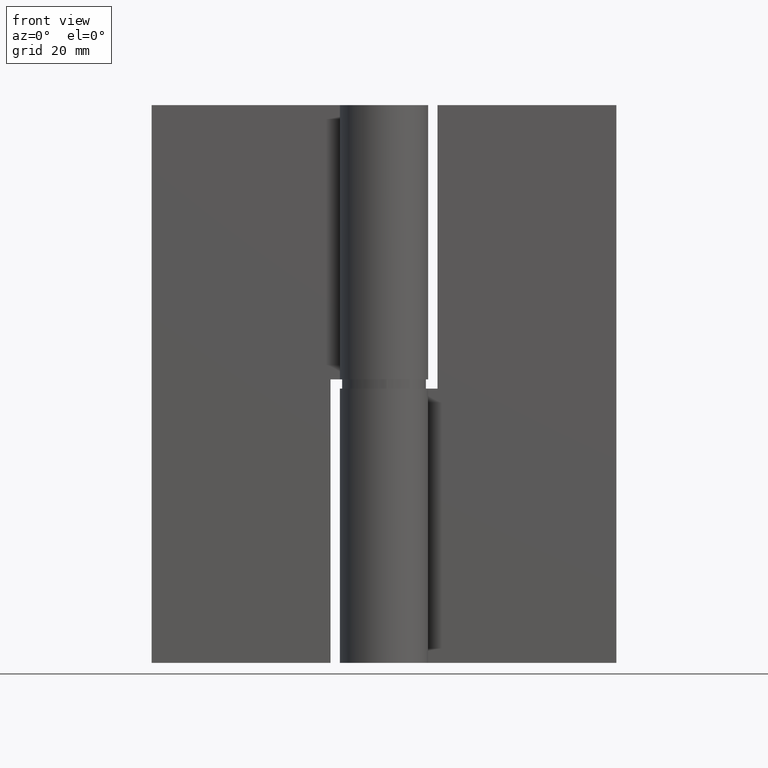
[diagram: clean part render]
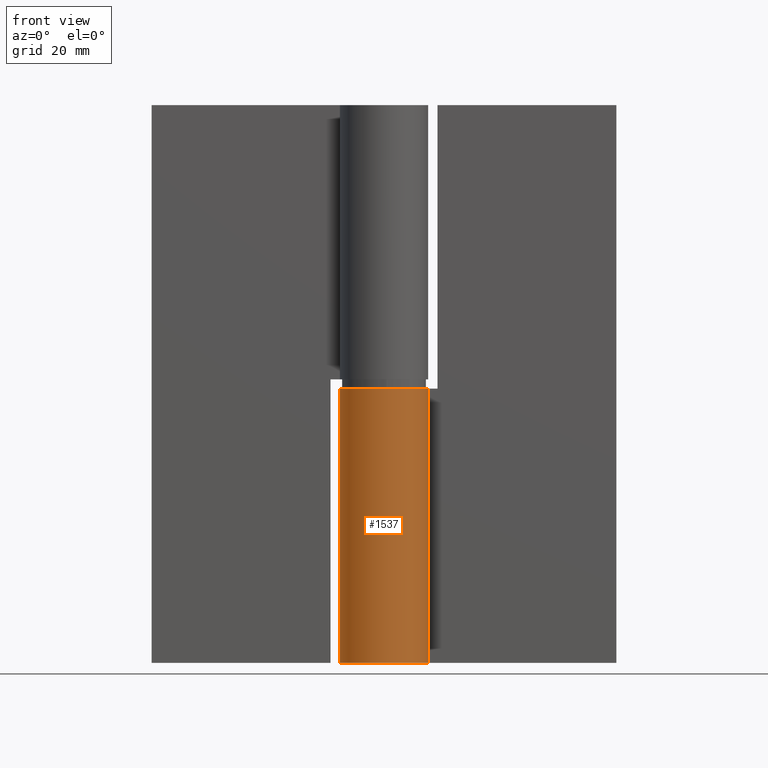
[diagram: same view with one face highlighted and labeled with its STEP entity id]
A machine part, front view. The second image highlights one B-rep face of the part: STEP entity #1537.
In plain terms, the highlighted face is a freeform B-spline surface patch.
Its self-contained STEP definition (entity closure, byte-faithful):
#1322=CARTESIAN_POINT('',(0.0,9.500000000000000,59.0));
#1323=VERTEX_POINT('',#1322);
#1329=CARTESIAN_POINT('',(8.108483212044041,4.950000000000000,59.0));
#1330=VERTEX_POINT('',#1329);
#1331=CARTESIAN_POINT('',(8.108483212044039,4.950000000000000,59.0));
#1332=CARTESIAN_POINT('',(11.930878856379517,-1.311379982198882,59.0));
#1333=CARTESIAN_POINT('',(6.839733550264772,-6.593030028854900,59.0));
#1334=CARTESIAN_POINT('',(1.748588244150026,-11.874680075510920,59.0));
#1335=CARTESIAN_POINT('',(-4.648924606831133,-8.284775193087619,59.0));
#1336=CARTESIAN_POINT('',(-11.046437457812283,-4.694870310664319,59.0));
#1337=CARTESIAN_POINT('',(-9.191174145187667,2.402564844667832,59.0));
#1338=CARTESIAN_POINT('',(-7.335910832563044,9.500000000000000,59.0));
#1339=CARTESIAN_POINT('',(0.0,9.500000000000000,59.0));
#1347=(BOUNDED_CURVE()B_SPLINE_CURVE(2,(#1331,#1332,#1333,#1334,#1335,#1336,#1337,#1338,#1339),.UNSPECIFIED.,.F.,.U.)B_SPLINE_CURVE_WITH_KNOTS((3,2,2,2,3),(0.0,0.250000000000000,0.500000000000000,0.750000000000000,1.0),.UNSPECIFIED.)CURVE()GEOMETRIC_REPRESENTATION_ITEM()RATIONAL_B_SPLINE_CURVE((1.0,0.791486437848626,1.0,0.791486437848626,1.0,0.791486437848626,1.0,0.791486437848626,1.0))REPRESENTATION_ITEM(''));
#1348=EDGE_CURVE('',#1330,#1323,#1347,.T.);
#1435=CARTESIAN_POINT('',(8.108483212044041,4.950000000000000,0.0));
#1436=VERTEX_POINT('',#1435);
#1442=CARTESIAN_POINT('',(0.0,9.500000000000000,0.0));
#1443=VERTEX_POINT('',#1442);
#1444=CARTESIAN_POINT('',(8.108483212044039,4.949999999999998,0.0));
#1445=CARTESIAN_POINT('',(11.930878856379515,-1.311379982198886,0.0));
#1446=CARTESIAN_POINT('',(6.839733550264771,-6.593030028854902,0.0));
#1447=CARTESIAN_POINT('',(1.748588244150024,-11.874680075510922,0.0));
#1448=CARTESIAN_POINT('',(-4.648924606831132,-8.284775193087620,0.0));
#1449=CARTESIAN_POINT('',(-11.046437457812292,-4.694870310664316,0.0));
#1450=CARTESIAN_POINT('',(-9.191174145187663,2.402564844667847,0.0));
#1451=CARTESIAN_POINT('',(-7.335910832563033,9.500000000000002,0.0));
#1452=CARTESIAN_POINT('',(0.0,9.500000000000000,0.0));
#1460=(BOUNDED_CURVE()B_SPLINE_CURVE(2,(#1444,#1445,#1446,#1447,#1448,#1449,#1450,#1451,#1452),.UNSPECIFIED.,.F.,.U.)B_SPLINE_CURVE_WITH_KNOTS((3,2,2,2,3),(0.0,0.250000000000000,0.500000000000000,0.750000000000000,1.0),.UNSPECIFIED.)CURVE()GEOMETRIC_REPRESENTATION_ITEM()RATIONAL_B_SPLINE_CURVE((1.0,0.791486437848626,1.0,0.791486437848626,1.0,0.791486437848626,1.0,0.791486437848626,1.0))REPRESENTATION_ITEM(''));
#1461=EDGE_CURVE('',#1436,#1443,#1460,.T.);
#1491=CARTESIAN_POINT('',(8.108483212044041,4.950000000000000,0.0));
#1492=CARTESIAN_POINT('',(8.108483212044041,4.950000000000000,59.0));
#1493=QUASI_UNIFORM_CURVE('',1,(#1491,#1492),.UNSPECIFIED.,.F.,.U.);
#1494=EDGE_CURVE('',#1436,#1330,#1493,.T.);
#1505=CARTESIAN_POINT('',(7.921915309638094,5.243401360464551,-1.475000000000001));
#1506=CARTESIAN_POINT('',(7.921915309638094,5.243401360464551,60.511875000000011));
#1507=CARTESIAN_POINT('',(14.474558910500789,-4.656563202934279,-1.475000000000001));
#1508=CARTESIAN_POINT('',(14.474558910500789,-4.656563202934279,60.511875000000011));
#1509=CARTESIAN_POINT('',(3.378682237241327,-8.878879790815386,-1.475000000000001));
#1510=CARTESIAN_POINT('',(3.378682237241327,-8.878879790815386,60.511875000000011));
#1511=CARTESIAN_POINT('',(-7.717194436018135,-13.101196378696493,-1.475000000000001));
#1512=CARTESIAN_POINT('',(-7.717194436018135,-13.101196378696493,60.511875000000011));
#1513=CARTESIAN_POINT('',(-9.403660894738863,-1.349504270745000,-1.475000000000001));
#1514=CARTESIAN_POINT('',(-9.403660894738863,-1.349504270745000,60.511875000000011));
#1515=CARTESIAN_POINT('',(-11.090127353459593,10.402187837206490,-1.475000000000001));
#1516=CARTESIAN_POINT('',(-11.090127353459593,10.402187837206490,60.511875000000011));
#1517=CARTESIAN_POINT('',(0.745361409414523,9.470714670464712,-1.475000000000001));
#1518=CARTESIAN_POINT('',(0.745361409414523,9.470714670464712,60.511875000000011));
#1526=(BOUNDED_SURFACE()B_SPLINE_SURFACE(1,2,((#1505,#1507,#1509,#1511,#1513,#1515,#1517),(#1506,#1508,#1510,#1512,#1514,#1516,#1518)),.UNSPECIFIED.,.F.,.F.,.U.)B_SPLINE_SURFACE_WITH_KNOTS((2,2),(3,2,2,3),(0.0,61.986875000000012),(0.0,18.260944577172101,36.521889154344187,54.782833731516291),.UNSPECIFIED.)GEOMETRIC_REPRESENTATION_ITEM()RATIONAL_B_SPLINE_SURFACE(((1.0,0.624788514543960,1.0,0.624788514543960,1.0,0.624788514543960,1.0),(1.0,0.624788514543960,1.0,0.624788514543960,1.0,0.624788514543960,1.0)))REPRESENTATION_ITEM('')SURFACE());
#1527=ORIENTED_EDGE('',*,*,#1494,.T.);
#1528=ORIENTED_EDGE('',*,*,#1348,.T.);
#1529=CARTESIAN_POINT('',(0.0,9.500000000000000,0.0));
#1530=CARTESIAN_POINT('',(0.0,9.500000000000000,59.0));
#1531=QUASI_UNIFORM_CURVE('',1,(#1529,#1530),.UNSPECIFIED.,.F.,.U.);
#1532=EDGE_CURVE('',#1443,#1323,#1531,.T.);
#1533=ORIENTED_EDGE('',*,*,#1532,.F.);
#1534=ORIENTED_EDGE('',*,*,#1461,.F.);
#1535=EDGE_LOOP('',(#1527,#1528,#1533,#1534));
#1536=FACE_OUTER_BOUND('',#1535,.T.);
#1537=ADVANCED_FACE('',(#1536),#1526,.T.);